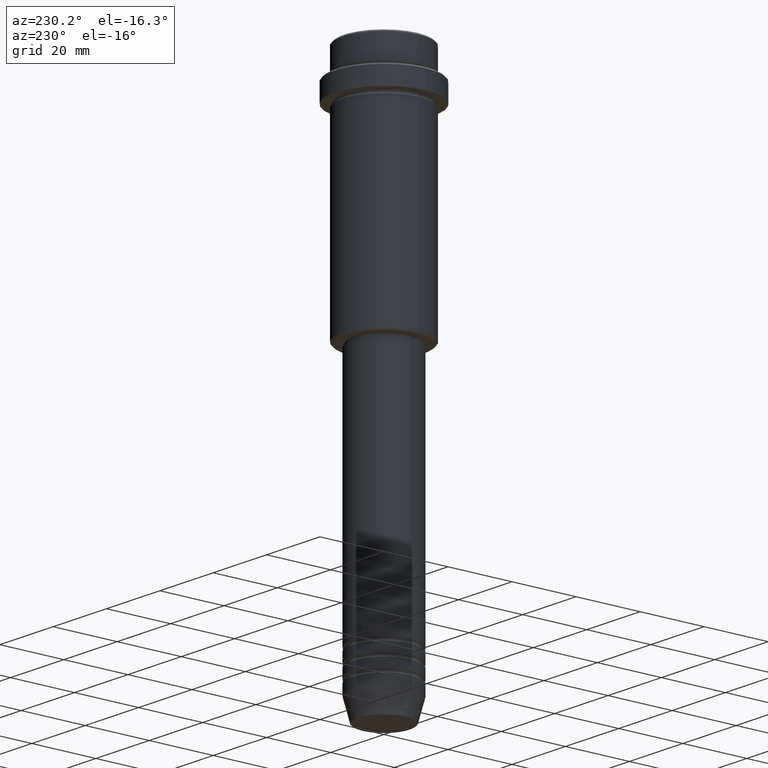
[diagram: clean part render]
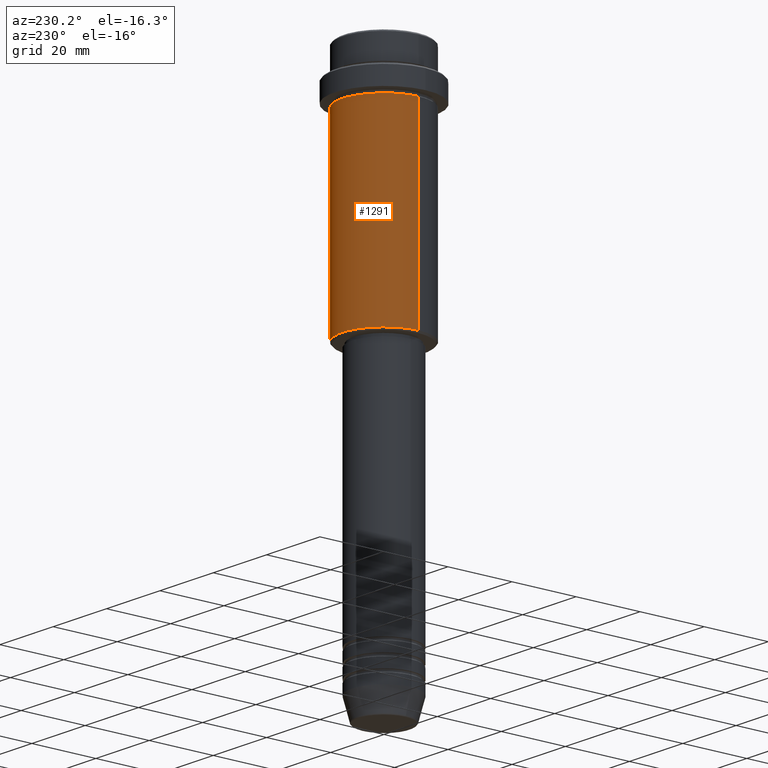
[diagram: same view with one face highlighted and labeled with its STEP entity id]
A machine part, auxiliary view. The second image highlights one B-rep face of the part: STEP entity #1291.
In plain terms, the highlighted cylindrical surface (partial cylindrical patch) has radius 13 mm, axis along (-0, -0, 1).
Its self-contained STEP definition (entity closure, byte-faithful):
#3 = DIRECTION ( 'NONE',  ( -0.000000000000000000, -0.000000000000000000, 1.000000000000000000 ) ) ;
#10 = CARTESIAN_POINT ( 'NONE',  ( 13.00000000000000000, 0.000000000000000000, 0.000000000000000000 ) ) ;
#22 = CYLINDRICAL_SURFACE ( 'NONE', #748, 13.00000000000000000 ) ;
#71 = CARTESIAN_POINT ( 'NONE',  ( 13.00000000000000000, 0.000000000000000000, -74.50000000000001421 ) ) ;
#79 = EDGE_CURVE ( 'NONE', #547, #823, #899, .T. ) ;
#81 = AXIS2_PLACEMENT_3D ( 'NONE', #1040, #609, #987 ) ;
#91 = CARTESIAN_POINT ( 'NONE',  ( -13.00000000000000000, 1.592040838891559095E-15, 0.000000000000000000 ) ) ;
#99 = DIRECTION ( 'NONE',  ( -0.000000000000000000, -0.000000000000000000, 1.000000000000000000 ) ) ;
#107 = CARTESIAN_POINT ( 'NONE',  ( 13.00000000000000000, 0.000000000000000000, -16.00000000000000000 ) ) ;
#166 = EDGE_CURVE ( 'NONE', #823, #868, #292, .T. ) ;
#292 = LINE ( 'NONE', #91, #1061 ) ;
#456 = CARTESIAN_POINT ( 'NONE',  ( -13.00000000000000000, 1.592040838891559095E-15, -74.50000000000001421 ) ) ;
#517 = DIRECTION ( 'NONE',  ( -0.000000000000000000, -0.000000000000000000, 1.000000000000000000 ) ) ;
#526 = ORIENTED_EDGE ( 'NONE', *, *, #166, .T. ) ;
#547 = VERTEX_POINT ( 'NONE', #71 ) ;
#577 = EDGE_CURVE ( 'NONE', #1216, #868, #604, .T. ) ;
#604 = CIRCLE ( 'NONE', #910, 13.00000000000000000 ) ;
#609 = DIRECTION ( 'NONE',  ( -0.000000000000000000, -0.000000000000000000, 1.000000000000000000 ) ) ;
#648 = CARTESIAN_POINT ( 'NONE',  ( -13.00000000000000000, 1.592040838891559095E-15, -16.00000000000000000 ) ) ;
#669 = LINE ( 'NONE', #10, #846 ) ;
#748 = AXIS2_PLACEMENT_3D ( 'NONE', #1106, #3, #895 ) ;
#761 = FACE_OUTER_BOUND ( 'NONE', #1072, .T. ) ;
#777 = ORIENTED_EDGE ( 'NONE', *, *, #577, .F. ) ;
#823 = VERTEX_POINT ( 'NONE', #456 ) ;
#845 = DIRECTION ( 'NONE',  ( 1.000000000000000000, 0.000000000000000000, 0.000000000000000000 ) ) ;
#846 = VECTOR ( 'NONE', #1212, 1000.000000000000000 ) ;
#853 = CARTESIAN_POINT ( 'NONE',  ( 0.000000000000000000, 0.000000000000000000, -16.00000000000000000 ) ) ;
#868 = VERTEX_POINT ( 'NONE', #648 ) ;
#895 = DIRECTION ( 'NONE',  ( 1.000000000000000000, 0.000000000000000000, 0.000000000000000000 ) ) ;
#899 = CIRCLE ( 'NONE', #81, 13.00000000000000000 ) ;
#910 = AXIS2_PLACEMENT_3D ( 'NONE', #853, #99, #845 ) ;
#987 = DIRECTION ( 'NONE',  ( -1.000000000000000000, 0.000000000000000000, 0.000000000000000000 ) ) ;
#1040 = CARTESIAN_POINT ( 'NONE',  ( 0.000000000000000000, 0.000000000000000000, -74.50000000000001421 ) ) ;
#1061 = VECTOR ( 'NONE', #517, 1000.000000000000000 ) ;
#1072 = EDGE_LOOP ( 'NONE', ( #1191, #526, #777, #1369 ) ) ;
#1106 = CARTESIAN_POINT ( 'NONE',  ( 0.000000000000000000, 0.000000000000000000, 0.000000000000000000 ) ) ;
#1191 = ORIENTED_EDGE ( 'NONE', *, *, #79, .T. ) ;
#1212 = DIRECTION ( 'NONE',  ( -0.000000000000000000, -0.000000000000000000, 1.000000000000000000 ) ) ;
#1216 = VERTEX_POINT ( 'NONE', #107 ) ;
#1251 = EDGE_CURVE ( 'NONE', #547, #1216, #669, .T. ) ;
#1291 = ADVANCED_FACE ( 'NONE', ( #761 ), #22, .T. ) ;
#1369 = ORIENTED_EDGE ( 'NONE', *, *, #1251, .F. ) ;